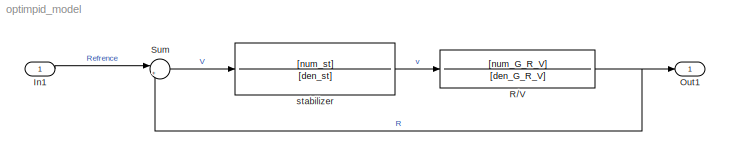
MODEL optimpid_model
KIND model
CONFIG InitFcn = m = 1   ; % ball weight (kg)\nd = 0.05; % gear rediuce (m)\na = 0.02; % ball rediuce (m)\nL = 1   ; % bar length (m)\ng = 9.8 ; % m/s^2 
BLOCK [Inport] In1
  SID = 62
BLOCK [Outport] Out1
  SID = 63
BLOCK [TransferFcn] R//V
  Denominator = [den_G_R_V]
  Numerator = [num_G_R_V]
  SID = 23
BLOCK [Sum] Sum
  Inputs = |+-
  Ports = [2, 1]
  SID = 64
BLOCK [TransferFcn] stabilizer
  Denominator = [den_st]
  Numerator = [num_st]
  SID = 15
LINE In1:1 -> Sum:1
NET R//V:1 -> Out1:1, Sum:2
LINE Sum:1 -> stabilizer:1
LINE stabilizer:1 -> R//V:1
note: NET lines group one-source signal fan-out (src -> all destinations, sorted); 1:1 wires keep LINE
